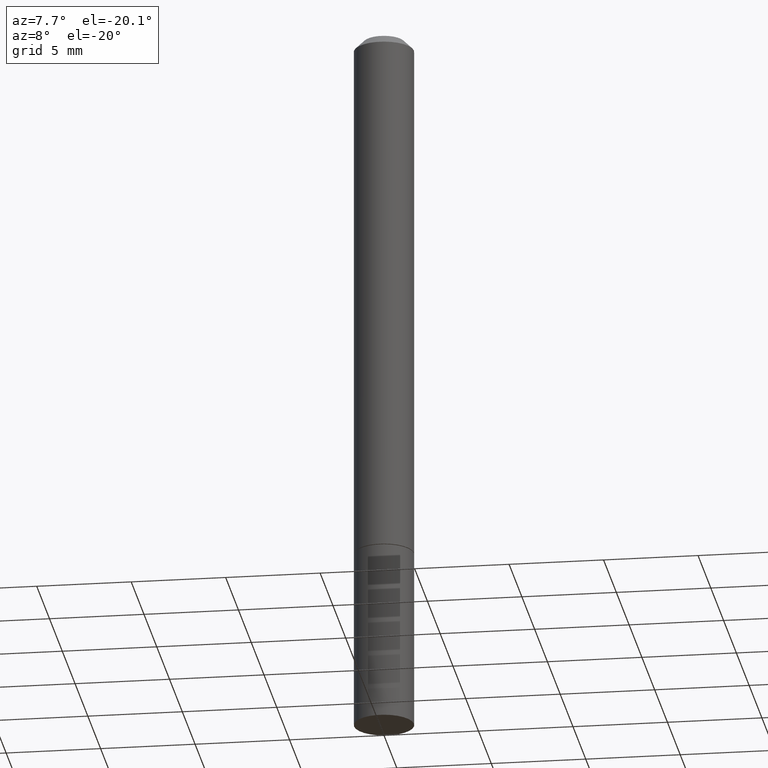
[diagram: clean part render]
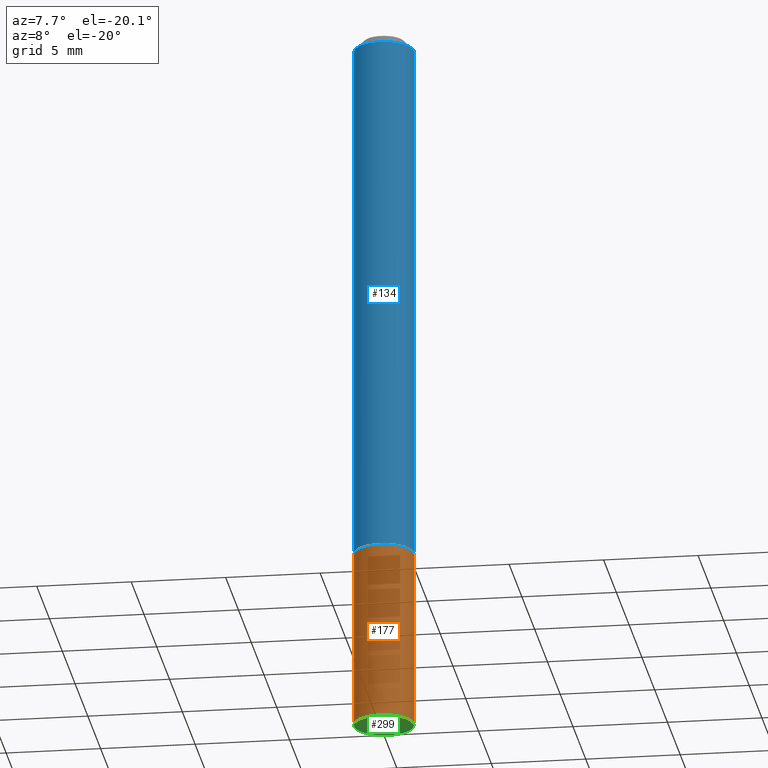
[diagram: same view with three faces highlighted in distinct colors, each labeled with its STEP entity id]
A machine part, auxiliary view with three faces highlighted in distinct colors.
Their STEP definitions:

[orange] entity #177 — the highlighted cylindrical surface (edge-blend (fillet) strip) has radius 1.5875 mm, axis along (-0, 0, 1).
#24 = VERTEX_POINT ( 'NONE', #353 ) ;
#26 = DIRECTION ( 'NONE',  ( 1.000000000000000000, -6.982962677686267499E-15, 4.876176775795935793E-29 ) ) ;
#42 = VERTEX_POINT ( 'NONE', #307 ) ;
#51 = VERTEX_POINT ( 'NONE', #140 ) ;
#53 = CARTESIAN_POINT ( 'NONE',  ( 3.668203209277704335E-29, -5.237222008264717388E-15, -1.499999999999999778 ) ) ;
#57 = DIRECTION ( 'NONE',  ( 1.000000000000000000, -6.982962677686261189E-15, 0.000000000000000000 ) ) ;
#63 = DIRECTION ( 'NONE',  ( -2.445468806185136877E-29, 3.491481338843145188E-15, 1.000000000000000000 ) ) ;
#80 = DIRECTION ( 'NONE',  ( -2.445468806185136597E-29, 3.491481338843145583E-15, 1.000000000000000000 ) ) ;
#89 = VECTOR ( 'NONE', #63, 39.37007874015748143 ) ;
#98 = EDGE_CURVE ( 'NONE', #24, #42, #262, .T. ) ;
#105 = EDGE_LOOP ( 'NONE', ( #186, #109, #350, #302 ) ) ;
#109 = ORIENTED_EDGE ( 'NONE', *, *, #98, .T. ) ;
#120 = LINE ( 'NONE', #288, #206 ) ;
#122 = LINE ( 'NONE', #319, #89 ) ;
#140 = CARTESIAN_POINT ( 'NONE',  ( -0.06250000000000001388, -4.138480047381564901E-15, -1.124999999999999778 ) ) ;
#142 = CYLINDRICAL_SURFACE ( 'NONE', #306, 0.06250000000000001388 ) ;
#168 = FACE_OUTER_BOUND ( 'NONE', #105, .T. ) ;
#177 = ADVANCED_FACE ( 'NONE', ( #168 ), #142, .T. ) ;
#178 = DIRECTION ( 'NONE',  ( -2.445468806185136877E-29, 3.491481338843145188E-15, 1.000000000000000000 ) ) ;
#186 = ORIENTED_EDGE ( 'NONE', *, *, #240, .F. ) ;
#195 = AXIS2_PLACEMENT_3D ( 'NONE', #237, #342, #260 ) ;
#206 = VECTOR ( 'NONE', #178, 39.37007874015748143 ) ;
#221 = AXIS2_PLACEMENT_3D ( 'NONE', #53, #312, #57 ) ;
#237 = CARTESIAN_POINT ( 'NONE',  ( 2.751152406958278111E-29, -3.927916506198538435E-15, -1.124999999999999778 ) ) ;
#240 = EDGE_CURVE ( 'NONE', #24, #51, #120, .T. ) ;
#241 = EDGE_CURVE ( 'NONE', #42, #328, #122, .T. ) ;
#243 = CIRCLE ( 'NONE', #195, 0.06250000000000001388 ) ;
#259 = CARTESIAN_POINT ( 'NONE',  ( 0.06250000000000001388, -4.364351673553930105E-15, -1.124999999999999778 ) ) ;
#260 = DIRECTION ( 'NONE',  ( 1.000000000000000000, -6.982962677686269077E-15, 0.000000000000000000 ) ) ;
#262 = CIRCLE ( 'NONE', #221, 0.06250000000000001388 ) ;
#286 = CARTESIAN_POINT ( 'NONE',  ( 0.000000000000000000, 0.000000000000000000, 0.000000000000000000 ) ) ;
#288 = CARTESIAN_POINT ( 'NONE',  ( -0.06250000000000001388, 4.440892098500627148E-16, -3.074334431409317165E-30 ) ) ;
#302 = ORIENTED_EDGE ( 'NONE', *, *, #317, .F. ) ;
#306 = AXIS2_PLACEMENT_3D ( 'NONE', #286, #80, #26 ) ;
#307 = CARTESIAN_POINT ( 'NONE',  ( 0.06250000000000001388, -5.673657175620109057E-15, -1.499999999999999778 ) ) ;
#312 = DIRECTION ( 'NONE',  ( -2.445468806185136597E-29, 3.491481338843145583E-15, 1.000000000000000000 ) ) ;
#317 = EDGE_CURVE ( 'NONE', #51, #328, #243, .T. ) ;
#319 = CARTESIAN_POINT ( 'NONE',  ( 0.06250000000000001388, -4.364351673553918173E-16, 3.047610484872460571E-30 ) ) ;
#328 = VERTEX_POINT ( 'NONE', #259 ) ;
#342 = DIRECTION ( 'NONE',  ( -2.445468806185136597E-29, 3.491481338843145583E-15, 1.000000000000000000 ) ) ;
#350 = ORIENTED_EDGE ( 'NONE', *, *, #241, .T. ) ;
#353 = CARTESIAN_POINT ( 'NONE',  ( -0.06250000000000001388, -4.138480047381564901E-15, -1.499999999999999778 ) ) ;

[blue] entity #134 — the highlighted cylindrical surface (edge-blend (fillet) strip) has radius 1.5875 mm, axis along (-0, 0, 1).
#14 = VERTEX_POINT ( 'NONE', #17 ) ;
#17 = CARTESIAN_POINT ( 'NONE',  ( 0.06250000000000001388, -4.360860192215086309E-15, -1.123999999999999888 ) ) ;
#19 = ORIENTED_EDGE ( 'NONE', *, *, #265, .F. ) ;
#39 = AXIS2_PLACEMENT_3D ( 'NONE', #148, #292, #146 ) ;
#47 = EDGE_LOOP ( 'NONE', ( #70, #103, #127, #19 ) ) ;
#70 = ORIENTED_EDGE ( 'NONE', *, *, #137, .F. ) ;
#83 = DIRECTION ( 'NONE',  ( -2.445468806185136597E-29, 3.491481338843145583E-15, 1.000000000000000000 ) ) ;
#88 = LINE ( 'NONE', #202, #325 ) ;
#103 = ORIENTED_EDGE ( 'NONE', *, *, #180, .T. ) ;
#111 = CARTESIAN_POINT ( 'NONE',  ( 2.748706938152093068E-29, -3.924425024859694639E-15, -1.123999999999999888 ) ) ;
#113 = CARTESIAN_POINT ( 'NONE',  ( 0.06249999999999988204, -4.986107516375831334E-16, -0.02000000000000008715 ) ) ;
#127 = ORIENTED_EDGE ( 'NONE', *, *, #289, .T. ) ;
#134 = ADVANCED_FACE ( 'NONE', ( #366 ), #252, .T. ) ;
#137 = EDGE_CURVE ( 'NONE', #160, #163, #88, .T. ) ;
#146 = DIRECTION ( 'NONE',  ( 1.000000000000000000, -6.982962677686266711E-15, 0.000000000000000000 ) ) ;
#148 = CARTESIAN_POINT ( 'NONE',  ( 4.890937612370294178E-31, -6.982962677686321191E-17, -0.02000000000000008715 ) ) ;
#160 = VERTEX_POINT ( 'NONE', #253 ) ;
#163 = VERTEX_POINT ( 'NONE', #333 ) ;
#169 = DIRECTION ( 'NONE',  ( 1.000000000000000000, -6.982962677686266711E-15, 4.876176775795935793E-29 ) ) ;
#176 = DIRECTION ( 'NONE',  ( -2.445468806185136877E-29, 3.491481338843145188E-15, 1.000000000000000000 ) ) ;
#179 = CARTESIAN_POINT ( 'NONE',  ( 0.06249999999999995143, -4.364351673553913243E-16, 3.047610484872457418E-30 ) ) ;
#180 = EDGE_CURVE ( 'NONE', #160, #14, #212, .T. ) ;
#184 = VERTEX_POINT ( 'NONE', #113 ) ;
#202 = CARTESIAN_POINT ( 'NONE',  ( -0.06249999999999995143, 4.440892098500622710E-16, -3.074334431409313661E-30 ) ) ;
#204 = LINE ( 'NONE', #179, #251 ) ;
#212 = CIRCLE ( 'NONE', #348, 0.06250000000000001388 ) ;
#230 = CARTESIAN_POINT ( 'NONE',  ( 0.000000000000000000, 0.000000000000000000, 0.000000000000000000 ) ) ;
#251 = VECTOR ( 'NONE', #176, 39.37007874015748143 ) ;
#252 = CYLINDRICAL_SURFACE ( 'NONE', #278, 0.06249999999999995143 ) ;
#253 = CARTESIAN_POINT ( 'NONE',  ( -0.06250000000000001388, -1.553038115968214380E-15, -1.123999999999999888 ) ) ;
#255 = DIRECTION ( 'NONE',  ( -2.445468806185136597E-29, 3.491481338843145583E-15, 1.000000000000000000 ) ) ;
#265 = EDGE_CURVE ( 'NONE', #163, #184, #308, .T. ) ;
#278 = AXIS2_PLACEMENT_3D ( 'NONE', #230, #83, #169 ) ;
#289 = EDGE_CURVE ( 'NONE', #14, #184, #204, .T. ) ;
#292 = DIRECTION ( 'NONE',  ( -2.445468806185136597E-29, 3.491481338843145583E-15, 1.000000000000000000 ) ) ;
#308 = CIRCLE ( 'NONE', #39, 0.06249999999999988204 ) ;
#315 = DIRECTION ( 'NONE',  ( -2.445468806185136877E-29, 3.491481338843145188E-15, 1.000000000000000000 ) ) ;
#325 = VECTOR ( 'NONE', #315, 39.37007874015748143 ) ;
#333 = CARTESIAN_POINT ( 'NONE',  ( -0.06249999999999988204, 3.666055405785276317E-16, -0.02000000000000008715 ) ) ;
#348 = AXIS2_PLACEMENT_3D ( 'NONE', #111, #255, #362 ) ;
#362 = DIRECTION ( 'NONE',  ( 1.000000000000000000, -6.982962677686269077E-15, 0.000000000000000000 ) ) ;
#366 = FACE_OUTER_BOUND ( 'NONE', #47, .T. ) ;

[green] entity #299 — the highlighted planar face has unit normal (0, -0, -1).
#24 = VERTEX_POINT ( 'NONE', #353 ) ;
#31 = CARTESIAN_POINT ( 'NONE',  ( 4.364351673554284500E-16, 0.06249999999999478195, -1.500000000000000222 ) ) ;
#37 = PLANE ( 'NONE',  #117 ) ;
#42 = VERTEX_POINT ( 'NONE', #307 ) ;
#53 = CARTESIAN_POINT ( 'NONE',  ( 3.668203209277704335E-29, -5.237222008264717388E-15, -1.499999999999999778 ) ) ;
#57 = DIRECTION ( 'NONE',  ( 1.000000000000000000, -6.982962677686261189E-15, 0.000000000000000000 ) ) ;
#62 = DIRECTION ( 'NONE',  ( -1.000000000000000000, 6.982962677686265922E-15, -4.876176775795935793E-29 ) ) ;
#78 = ORIENTED_EDGE ( 'NONE', *, *, #365, .F. ) ;
#94 = CARTESIAN_POINT ( 'NONE',  ( 3.668203209277704335E-29, -5.237222008264717388E-15, -1.499999999999999778 ) ) ;
#98 = EDGE_CURVE ( 'NONE', #24, #42, #262, .T. ) ;
#107 = CIRCLE ( 'NONE', #222, 0.06250000000000001388 ) ;
#117 = AXIS2_PLACEMENT_3D ( 'NONE', #31, #341, #62 ) ;
#118 = DIRECTION ( 'NONE',  ( 1.000000000000000000, -6.982962677686261189E-15, 0.000000000000000000 ) ) ;
#149 = FACE_OUTER_BOUND ( 'NONE', #357, .T. ) ;
#200 = ORIENTED_EDGE ( 'NONE', *, *, #98, .F. ) ;
#210 = DIRECTION ( 'NONE',  ( -2.445468806185136597E-29, 3.491481338843145583E-15, 1.000000000000000000 ) ) ;
#221 = AXIS2_PLACEMENT_3D ( 'NONE', #53, #312, #57 ) ;
#222 = AXIS2_PLACEMENT_3D ( 'NONE', #94, #210, #118 ) ;
#262 = CIRCLE ( 'NONE', #221, 0.06250000000000001388 ) ;
#299 = ADVANCED_FACE ( 'NONE', ( #149 ), #37, .T. ) ;
#307 = CARTESIAN_POINT ( 'NONE',  ( 0.06250000000000001388, -5.673657175620109057E-15, -1.499999999999999778 ) ) ;
#312 = DIRECTION ( 'NONE',  ( -2.445468806185136597E-29, 3.491481338843145583E-15, 1.000000000000000000 ) ) ;
#341 = DIRECTION ( 'NONE',  ( 2.438088387897960049E-29, -3.491481338843145188E-15, -1.000000000000000000 ) ) ;
#353 = CARTESIAN_POINT ( 'NONE',  ( -0.06250000000000001388, -4.138480047381564901E-15, -1.499999999999999778 ) ) ;
#357 = EDGE_LOOP ( 'NONE', ( #78, #200 ) ) ;
#365 = EDGE_CURVE ( 'NONE', #42, #24, #107, .T. ) ;